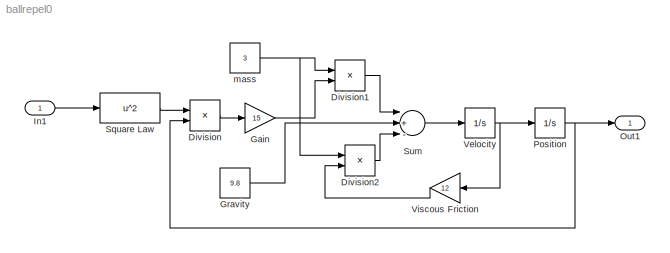
MODEL ballrepel0
KIND model
BLOCK [Product] Division
  Inputs = */
  Ports = [2, 1]
  SID = 2
BLOCK [Product] Division1
  Inputs = /*
  Ports = [2, 1]
  SID = 3
BLOCK [Product] Division2
  Inputs = /*
  Ports = [2, 1]
  SID = 4
BLOCK [Gain] Gain
  Gain = 15
  SID = 5
BLOCK [Constant] Gravity
  SID = 6
  Value = 9.8
BLOCK [Inport] In1
  IconDisplay = Port number
  SID = 1
BLOCK [Outport] Out1
  IconDisplay = Port number
  SID = 13
BLOCK [Integrator] Position
  InitialCondition = .5
  Ports = [1, 1]
  SID = 7
BLOCK [Fcn] Square Law
  Expr = u^2
  SID = 8
BLOCK [Sum] Sum
  Inputs = |+--
  Ports = [3, 1]
  SID = 9
BLOCK [Integrator] Velocity
  Ports = [1, 1]
  SID = 10
BLOCK [Gain] Viscous Friction
  Gain = 12
  SID = 11
BLOCK [Constant] mass
  SID = 12
  Value = 3
LINE Division1:1 -> Sum:1
LINE Division2:1 -> Sum:3
LINE Division:1 -> Gain:1
LINE Gain:1 -> Division1:2
LINE Gravity:1 -> Sum:2
LINE In1:1 -> Square Law:1
NET Position:1 -> Division:2, Out1:1
LINE Square Law:1 -> Division:1
LINE Sum:1 -> Velocity:1
NET Velocity:1 -> Position:1, Viscous Friction:1
LINE Viscous Friction:1 -> Division2:2
NET mass:1 -> Division1:1, Division2:1
note: NET lines group one-source signal fan-out (src -> all destinations, sorted); 1:1 wires keep LINE
